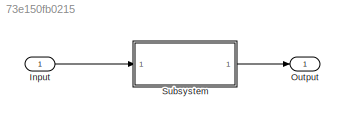
MODEL slx_73e150fb0215
KIND model
CONFIG AbsTol = auto
CONFIG EnableMultiTasking = off
CONFIG FixedStep = auto
CONFIG MaxStep = auto
CONFIG MinStep = auto
CONFIG RelTol = 1e-3
CONFIG SampleTimeConstraint = Unconstrained
CONFIG SolverName = VariableStepAuto
CONFIG StartTime = 0.0
CONFIG StopTime = 10.0
BLOCK [Inport] Input
BLOCK [Outport] Output
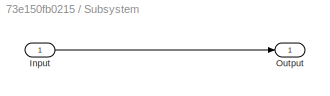
BLOCK [SubSystem] Subsystem
BLOCK [Inport] Subsystem/Input
BLOCK [Outport] Subsystem/Output
LINE Input:1 -> Subsystem:1
LINE Subsystem/Input:1 -> Subsystem/Output:1
LINE Subsystem:1 -> Output:1
